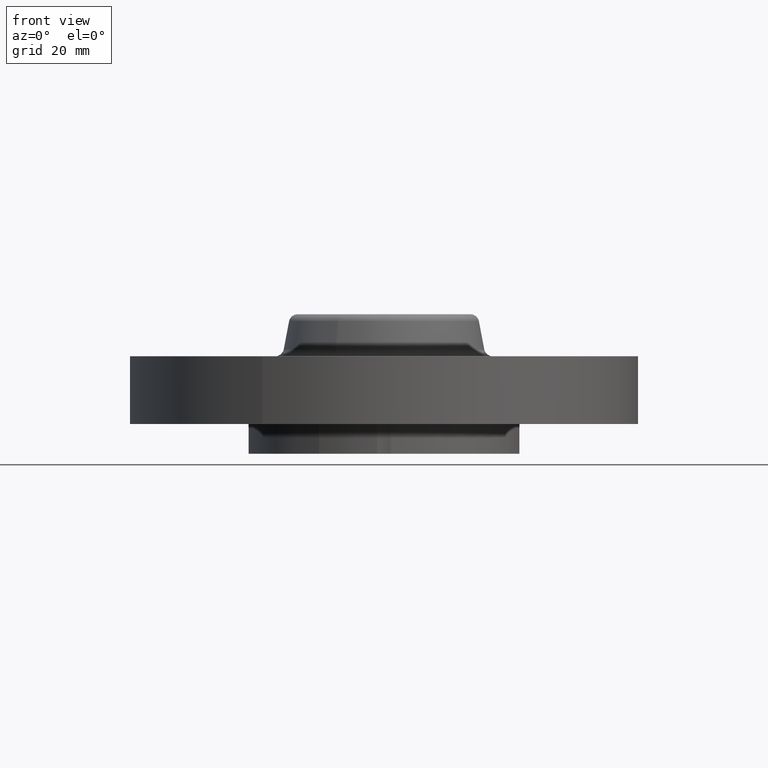
[diagram: clean part render]
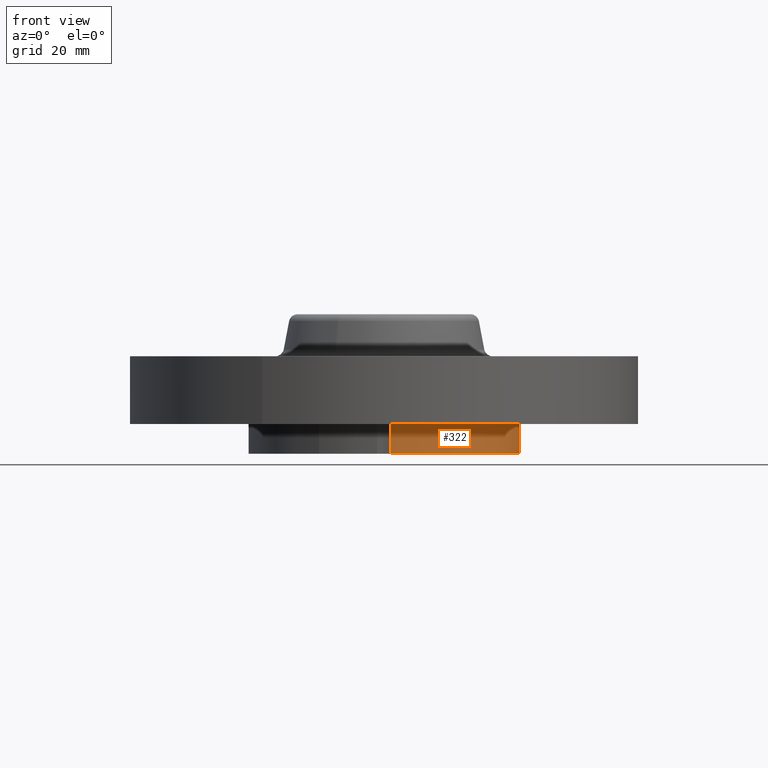
[diagram: same view with one face highlighted and labeled with its STEP entity id]
A machine part, front view. The second image highlights one B-rep face of the part: STEP entity #322.
In plain terms, the highlighted cylindrical surface (partial cylindrical patch) has radius 25.4 mm, axis along (0, 0, -1).
Its self-contained STEP definition (entity closure, byte-faithful):
#193=AXIS2_PLACEMENT_3D('Circle Axis2P3D',#191,#192,$) ;
#295=AXIS2_PLACEMENT_3D('Cylinder Axis2P3D',#292,#293,#294) ;
#306=AXIS2_PLACEMENT_3D('Circle Axis2P3D',#304,#305,$) ;
#191=CARTESIAN_POINT('Axis2P3D Location',(0.,0.,-0.219000000001)) ;
#195=CARTESIAN_POINT('Vertex',(0.998807251912,-0.0488269754871,-0.219000000001)) ;
#197=CARTESIAN_POINT('Vertex',(0.0488269754871,-0.998807251912,-0.219000000001)) ;
#292=CARTESIAN_POINT('Axis2P3D Location',(0.,0.,0.295500000001)) ;
#297=CARTESIAN_POINT('Line Origine',(0.998807251912,-0.0488269754871,-0.1095)) ;
#301=CARTESIAN_POINT('Vertex',(0.998807251912,-0.0488269754871,6.99353086378E-017)) ;
#304=CARTESIAN_POINT('Axis2P3D Location',(0.,0.,6.99353086378E-017)) ;
#308=CARTESIAN_POINT('Vertex',(0.0488269754871,-0.998807251912,6.99353086378E-017)) ;
#311=CARTESIAN_POINT('Line Origine',(0.0488269754871,-0.998807251912,-0.1095)) ;
#192=DIRECTION('Axis2P3D Direction',(0.,0.,-0.0393700787402)) ;
#293=DIRECTION('Axis2P3D Direction',(0.,0.,-0.0393700787402)) ;
#294=DIRECTION('Axis2P3D XDirection',(0.0188750212049,0.0345504945626,0.)) ;
#298=DIRECTION('Vector Direction',(0.,0.,-0.0393700787402)) ;
#305=DIRECTION('Axis2P3D Direction',(0.,0.,-0.0393700787402)) ;
#312=DIRECTION('Vector Direction',(0.,0.,-0.0393700787402)) ;
#299=VECTOR('Line Direction',#298,0.0393700787402) ;
#313=VECTOR('Line Direction',#312,0.0393700787402) ;
#317=ORIENTED_EDGE('',*,*,#199,.F.) ;
#318=ORIENTED_EDGE('',*,*,#303,.F.) ;
#319=ORIENTED_EDGE('',*,*,#310,.T.) ;
#320=ORIENTED_EDGE('',*,*,#315,.T.) ;
#322=ADVANCED_FACE('PartBody',(#321),#296,.T.) ;
#194=CIRCLE('generated circle',#193,1.) ;
#307=CIRCLE('generated circle',#306,1.) ;
#296=CYLINDRICAL_SURFACE('generated cylinder',#295,1.) ;
#199=EDGE_CURVE('',#196,#198,#194,.T.) ;
#303=EDGE_CURVE('',#302,#196,#300,.T.) ;
#310=EDGE_CURVE('',#302,#309,#307,.T.) ;
#315=EDGE_CURVE('',#309,#198,#314,.T.) ;
#316=EDGE_LOOP('',(#317,#318,#319,#320)) ;
#321=FACE_OUTER_BOUND('',#316,.T.) ;
#300=LINE('Line',#297,#299) ;
#314=LINE('Line',#311,#313) ;
#196=VERTEX_POINT('',#195) ;
#198=VERTEX_POINT('',#197) ;
#302=VERTEX_POINT('',#301) ;
#309=VERTEX_POINT('',#308) ;